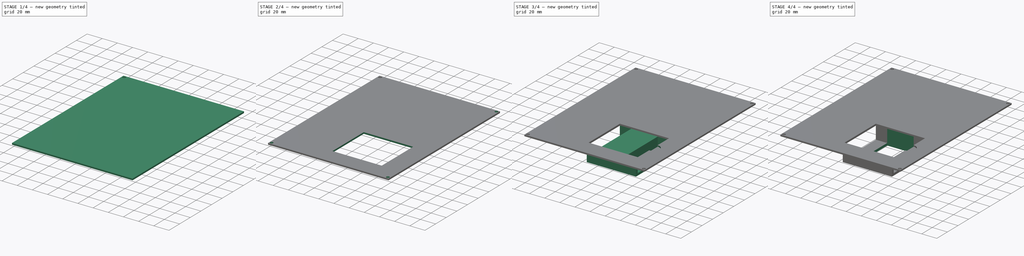
[diagram: build sequence overview — one tinted view per stage of 4, left to right]
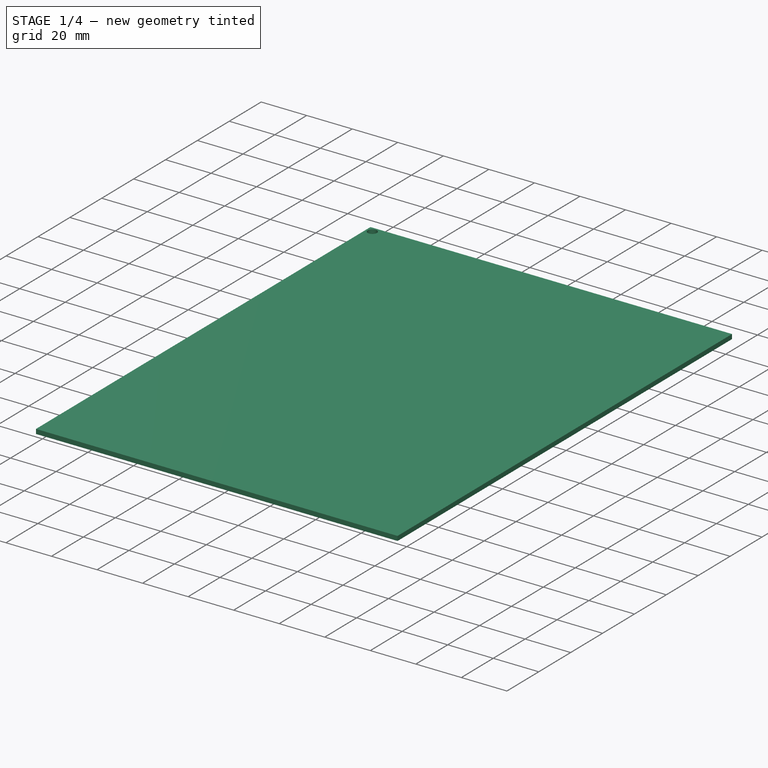
[diagram: stage 1 of 4 — iso view after this stage's code; geometry added in this stage tinted green]
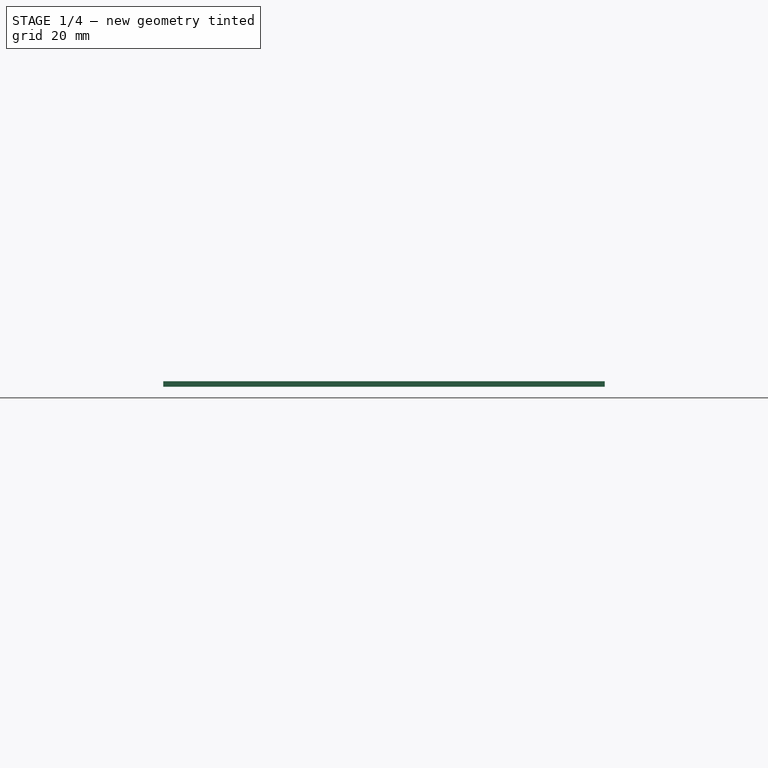
[diagram: stage 1 of 4 — front view after this stage's code; geometry added in this stage tinted green]
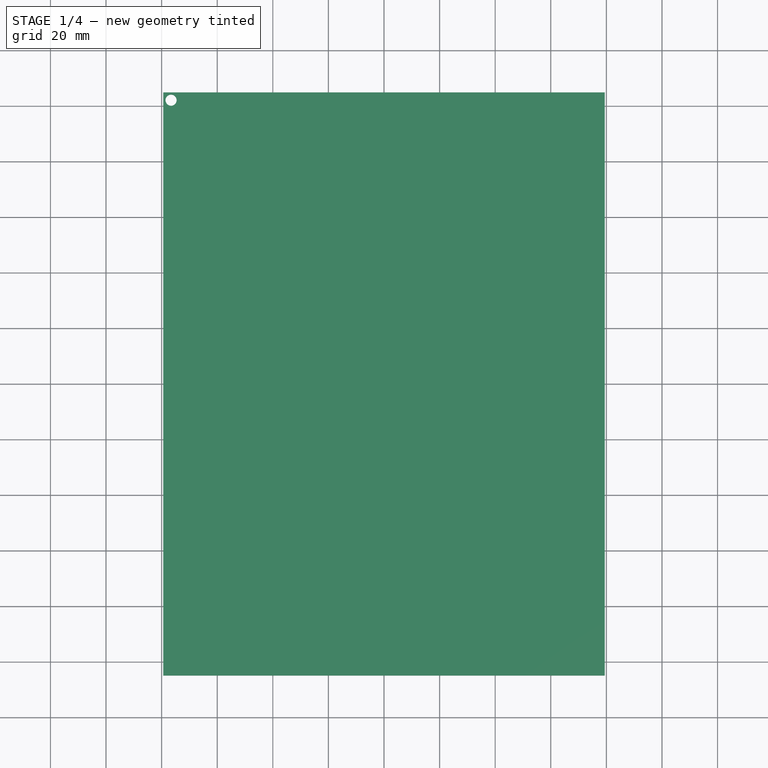
[diagram: stage 1 of 4 — top view after this stage's code; geometry added in this stage tinted green]
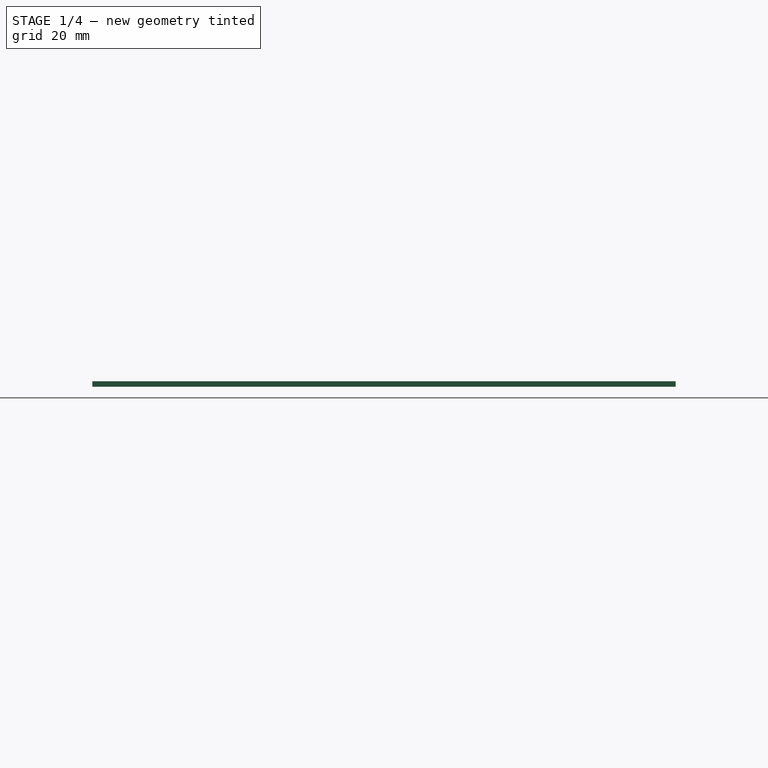
[diagram: stage 1 of 4 — right view after this stage's code; geometry added in this stage tinted green]
FCSTD DOCUMENT  (FreeCAD 0.20R29603 (Git))
Label: lid-frame-2x2
License: All rights reserved
LicenseURL: http://en.wikipedia.org/wiki/All_rights_reserved
objects: Sketcher::SketchObject×8, PartDesign::Pocket×5, PartDesign::Pad×3, PartDesign::Mirrored×2, PartDesign::MultiTransform×1, PartDesign::Body×1
note: 28 computed .brp shape members not serialized (recipe doc carries the construction recipe); baked Part::Feature solids carry a one-line shape summary decoded from their .brp

FEATURE [Sketcher::SketchObject] Sketch  label="Base"
  FullyConstrained = true
  MapMode = 5
  Support = -> [XY_Plane]
  sketch-geometry (4):
    g0: LineSegment StartX=-79.4 StartY=104.9 StartZ=0 EndX=79.4 EndY=104.9 EndZ=0
    g1: LineSegment StartX=79.4 StartY=104.9 StartZ=0 EndX=79.4 EndY=-104.9 EndZ=0
    g2: LineSegment StartX=79.4 StartY=-104.9 StartZ=0 EndX=-79.4 EndY=-104.9 EndZ=0
    g3: LineSegment StartX=-79.4 StartY=-104.9 StartZ=0 EndX=-79.4 EndY=104.9 EndZ=0
  constraints (11):
    c: Coincident(g0,g1)
    c: Coincident(g1,g2)
    c: Coincident(g2,g3)
    c: Coincident(g3,g0)
    c: Horizontal(g0)
    c: Horizontal(g2)
    c: Vertical(g1)
    c: Vertical(g3)
    c: DistanceY(g2,g0) = 209.8
    c: DistanceX(g0,g0) = 158.8
    c: Symmetric(g0,g1,g-1)
FEATURE [PartDesign::Pad] Pad
  Direction = (0,0,1)
  Length = 2
  Length2 = 10
  Profile = -> Sketch
  ReferenceAxis = -> Sketch [N_Axis]
  Type = 0
FEATURE [Sketcher::SketchObject] Sketch001  label="ScrewHole"
  ExternalGeometry = -> [Pad]
  FullyConstrained = true
  MapMode = 5
  Placement = pos=(0,0,2) rot=(0,0,1;0rad)
  Support = -> [Pad]
  sketch-geometry (1):
    g0: Circle CenterX=-76.6 CenterY=102.1 CenterZ=0 NormalX=0 NormalY=0 NormalZ=1 AngleXU=0 Radius=2
  constraints (3):
    c: Diameter(g0) = 4
    c: Distance(g0,g-3) = 2.8
    c: Distance(g0,g-4) = 2.8
FEATURE [PartDesign::Pocket] Pocket
  BaseFeature = -> Pad
  Direction = (0,0,-1)
  Length = 5
  Length2 = 5
  Profile = -> Sketch001
  ReferenceAxis = -> Sketch001 [N_Axis]
  Type = 1
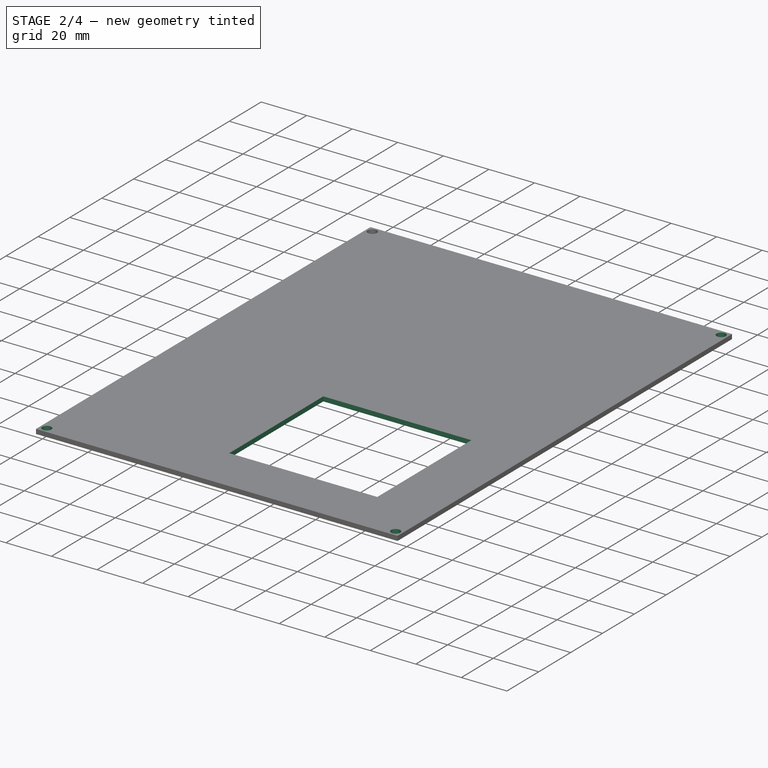
[diagram: stage 2 of 4 — iso view after this stage's code; geometry added in this stage tinted green]
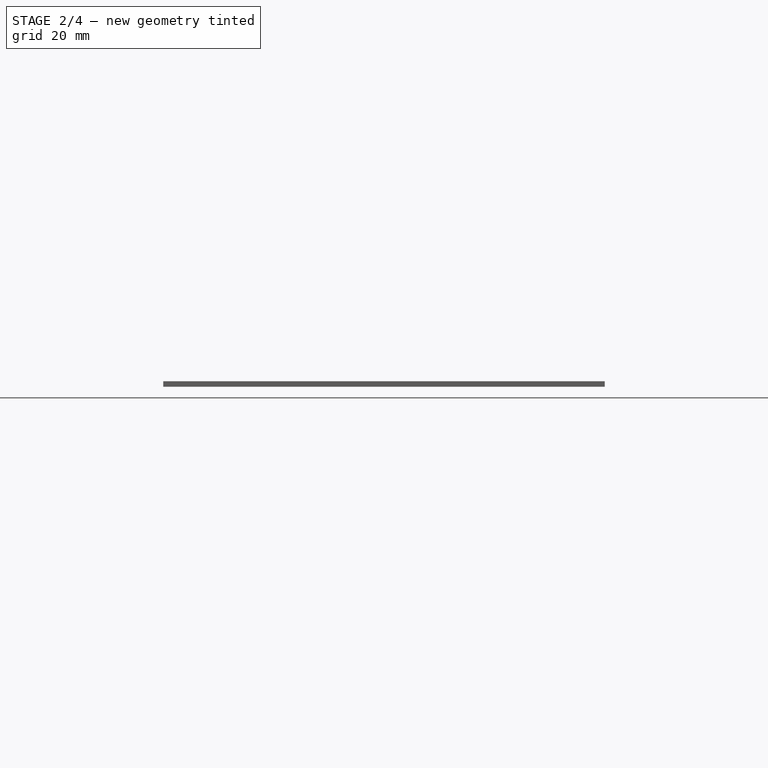
[diagram: stage 2 of 4 — front view after this stage's code; geometry added in this stage tinted green]
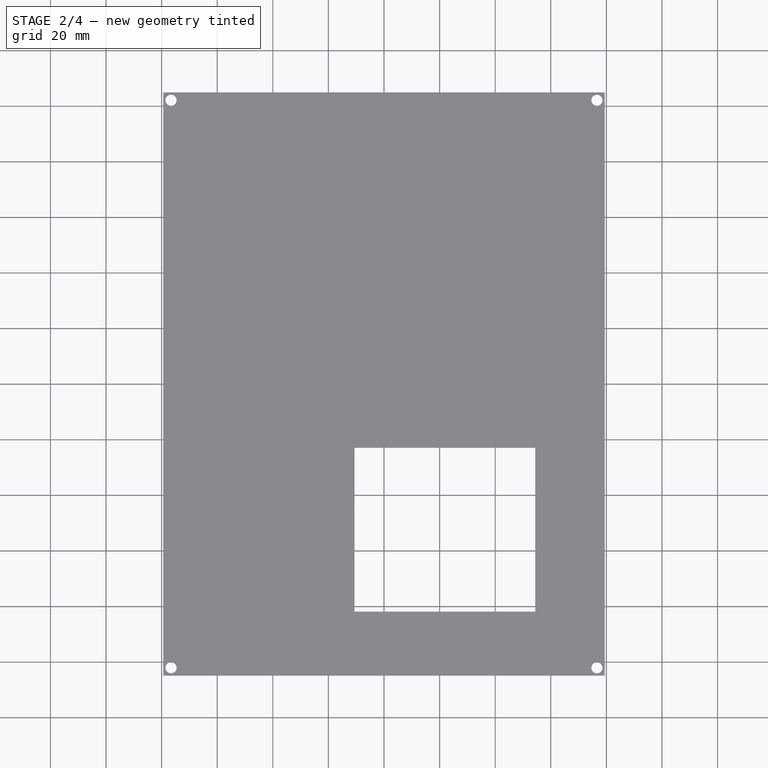
[diagram: stage 2 of 4 — top view after this stage's code; geometry added in this stage tinted green]
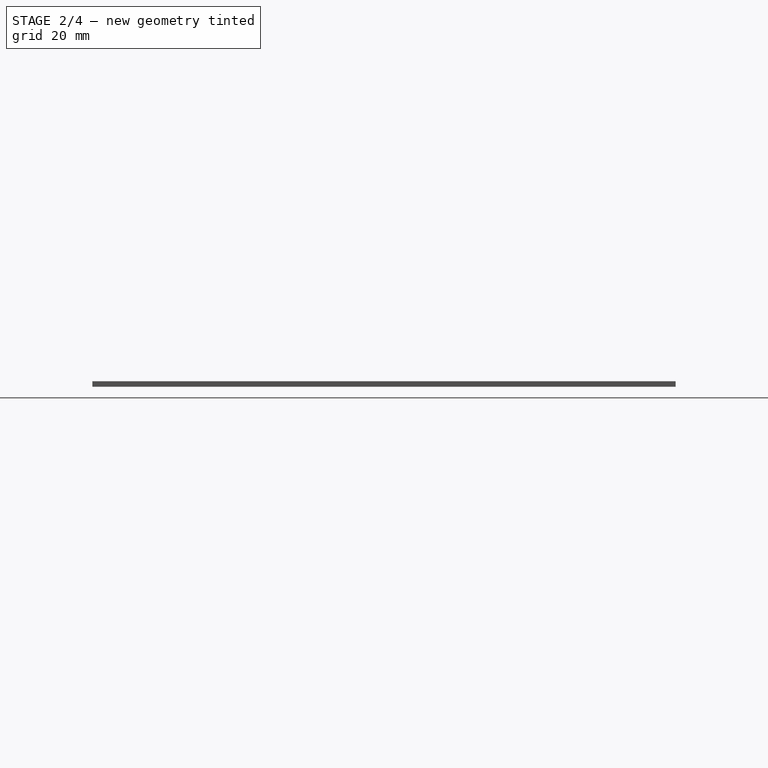
[diagram: stage 2 of 4 — right view after this stage's code; geometry added in this stage tinted green]
FEATURE [PartDesign::Mirrored] Mirrored  label="ScrewHoleMirrorV"
  MirrorPlane = -> Sketch001 [V_Axis]
FEATURE [PartDesign::Mirrored] Mirrored001  label="ScrewHoleMirrorH"
  MirrorPlane = -> Sketch001 [H_Axis]
FEATURE [PartDesign::MultiTransform] MultiTransform
  BaseFeature = -> Pocket
  Originals = -> [Pocket]
  Transformations = -> [Mirrored,Mirrored001]
FEATURE [Sketcher::SketchObject] Sketch002
  ExternalGeometry = -> [MultiTransform]
  FullyConstrained = true
  MapMode = 5
  Placement = pos=(0,0,2) rot=(0,0,1;0rad)
  Support = -> [MultiTransform]
  sketch-geometry (4):
    g0: LineSegment StartX=-10.6 StartY=-22.9 StartZ=0 EndX=54.4 EndY=-22.9 EndZ=0
    g1: LineSegment StartX=54.4 StartY=-22.9 StartZ=0 EndX=54.4 EndY=-81.9 EndZ=0
    g2: LineSegment StartX=54.4 StartY=-81.9 StartZ=0 EndX=-10.6 EndY=-81.9 EndZ=0
    g3: LineSegment StartX=-10.6 StartY=-81.9 StartZ=0 EndX=-10.6 EndY=-22.9 EndZ=0
  constraints (12):
    c: Coincident(g0,g1)
    c: Coincident(g1,g2)
    c: Coincident(g2,g3)
    c: Coincident(g3,g0)
    c: Horizontal(g0)
    c: Horizontal(g2)
    c: Vertical(g1)
    c: Vertical(g3)
    c: DistanceY(g2,g0) = 59
    c: DistanceX(g0,g0) = 65
    c: DistanceX(g1,g-3) = 25
    c: DistanceY(g-3,g0) = 82
FEATURE [PartDesign::Pocket] Pocket001
  BaseFeature = -> MultiTransform
  Direction = (0,0,-1)
  Length = 5
  Length2 = 5
  Profile = -> Sketch002
  ReferenceAxis = -> Sketch002 [N_Axis]
  Type = 1
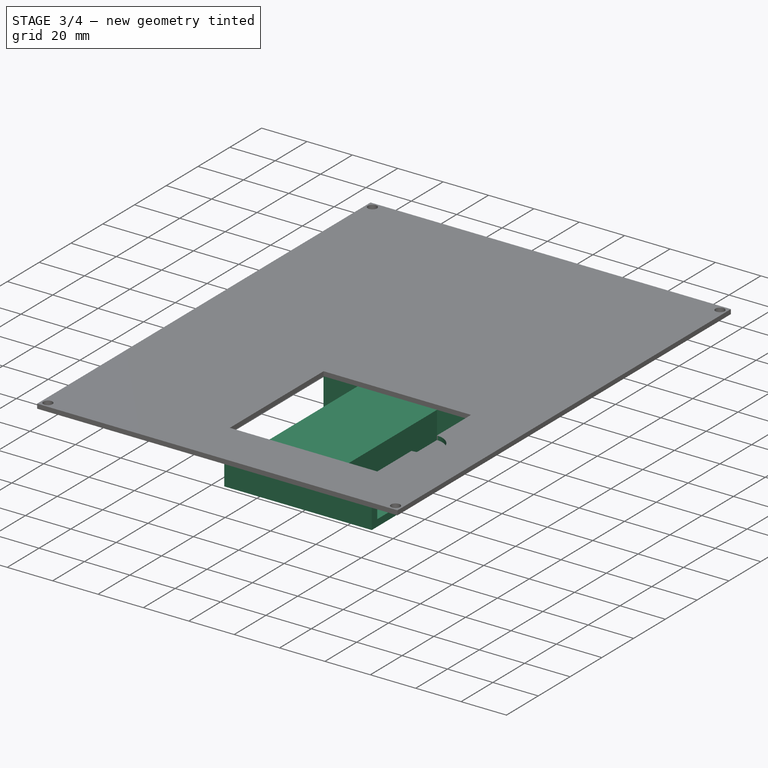
[diagram: stage 3 of 4 — iso view after this stage's code; geometry added in this stage tinted green]
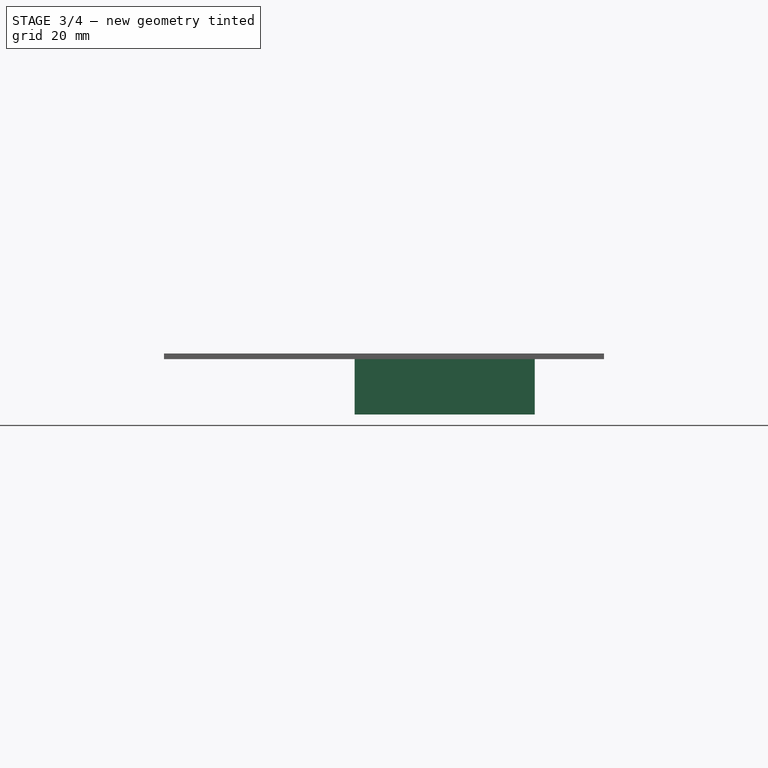
[diagram: stage 3 of 4 — front view after this stage's code; geometry added in this stage tinted green]
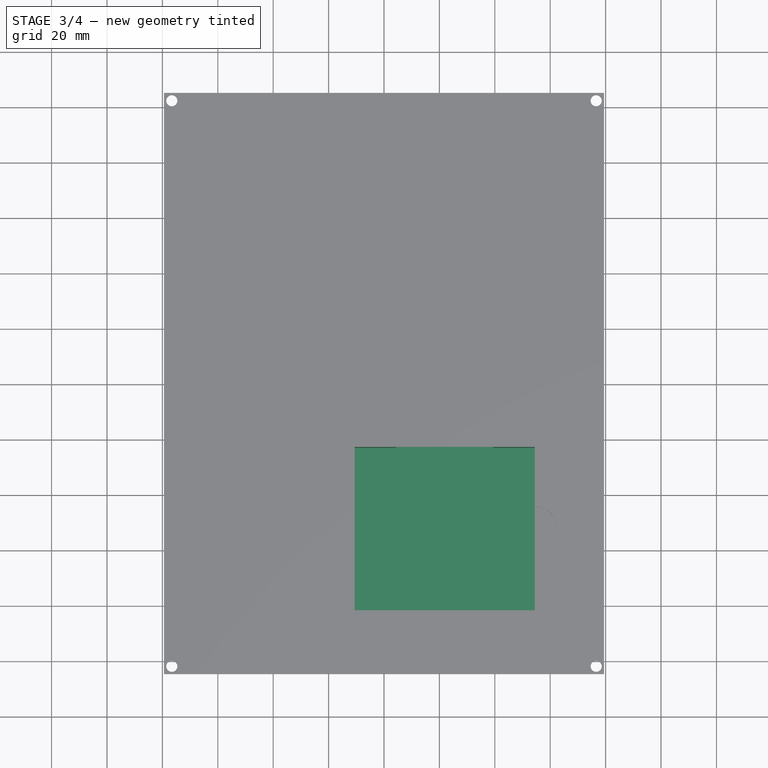
[diagram: stage 3 of 4 — top view after this stage's code; geometry added in this stage tinted green]
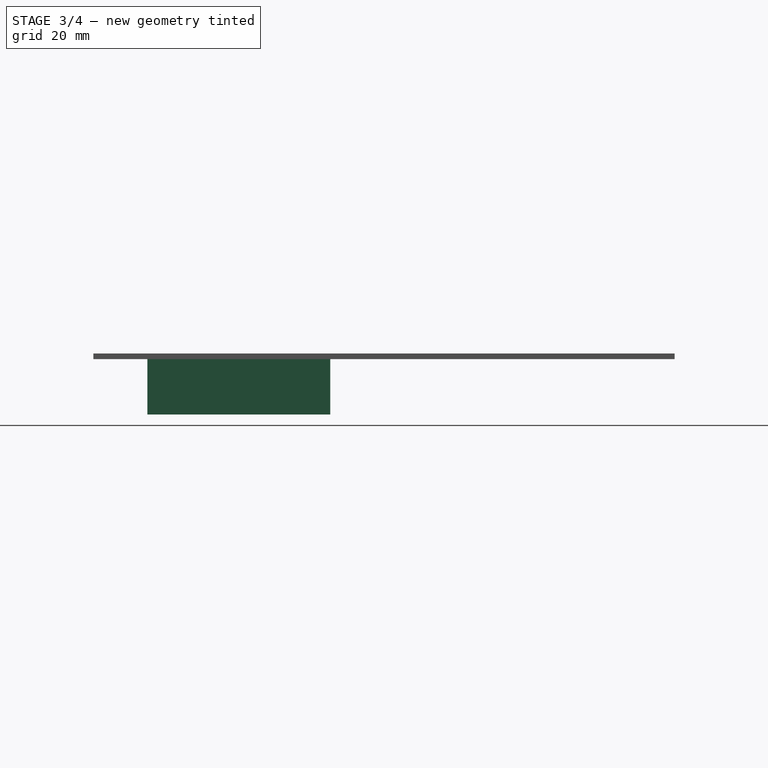
[diagram: stage 3 of 4 — right view after this stage's code; geometry added in this stage tinted green]
FEATURE [Sketcher::SketchObject] Sketch003
  ExternalGeometry = -> [Pocket001]
  FullyConstrained = true
  MapMode = 5
  Placement = pos=(0,0,0) rot=(1,0,0;3.14159rad)
  Support = -> [Pocket001]
  sketch-geometry (4):
    g0: LineSegment StartX=-10.6 StartY=85.4 StartZ=0 EndX=54.4 EndY=85.4 EndZ=0
    g1: LineSegment StartX=54.4 StartY=85.4 StartZ=0 EndX=54.4 EndY=19.4 EndZ=0
    g2: LineSegment StartX=54.4 StartY=19.4 StartZ=0 EndX=-10.6 EndY=19.4 EndZ=0
    g3: LineSegment StartX=-10.6 StartY=19.4 StartZ=0 EndX=-10.6 EndY=85.4 EndZ=0
  constraints (12):
    c: Coincident(g0,g1)
    c: Coincident(g1,g2)
    c: Coincident(g2,g3)
    c: Coincident(g3,g0)
    c: Horizontal(g0)
    c: Horizontal(g2)
    c: Vertical(g1)
    c: Vertical(g3)
    c: DistanceY(g-5,g0) = 3.5
    c: Vertical(g0,g-4)
    c: Vertical(g0,g-5)
    c: DistanceY(g2,g-6) = 3.5
FEATURE [PartDesign::Pad] Pad001
  BaseFeature = -> Pocket001
  Direction = (0,0,-1)
  Length = 20
  Length2 = 10
  Profile = -> Sketch003
  ReferenceAxis = -> Sketch003 [N_Axis]
  Type = 0
FEATURE [Sketcher::SketchObject] Sketch004
  ExternalGeometry = -> [Pad001]
  FullyConstrained = true
  MapMode = 5
  Placement = pos=(0,0,2) rot=(0,0,1;0rad)
  Support = -> [Pad001]
  sketch-geometry (2):
    g0: ArcOfCircle CenterX=54.4 CenterY=-52.4 CenterZ=0 NormalX=0 NormalY=0 NormalZ=1 AngleXU=0 Radius=8 StartAngle=4.71239 EndAngle=7.85398
    g1: LineSegment StartX=54.4 StartY=-44.4 StartZ=0 EndX=54.4 EndY=-60.4 EndZ=0
  constraints (6):
    c: Radius(g0) = 8
    c: Vertical(g0,g0)
    c: Coincident(g1,g0)
    c: Coincident(g1,g0)
    c: PointOnObject(g0,g1)
    c: Symmetric(g-3,g-3,g0)
FEATURE [PartDesign::Pocket] Pocket002
  BaseFeature = -> Pad001
  Direction = (0,0,-1)
  Length = 1.8
  Length2 = 5
  Profile = -> Sketch004
  ReferenceAxis = -> Sketch004 [N_Axis]
  Type = 0
FEATURE [Sketcher::SketchObject] Sketch005
  ExternalGeometry = -> [Pocket002]
  FullyConstrained = true
  MapMode = 5
  Support = -> [Pocket002]
  sketch-geometry (8):
    g0: LineSegment StartX=-10.6 StartY=-22.9 StartZ=0 EndX=4.4 EndY=-22.9 EndZ=0
    g1: LineSegment StartX=4.4 StartY=-22.9 StartZ=0 EndX=4.4 EndY=-81.9 EndZ=0
    g2: LineSegment StartX=4.4 StartY=-81.9 StartZ=0 EndX=-10.6 EndY=-81.9 EndZ=0
    g3: LineSegment StartX=-10.6 StartY=-81.9 StartZ=0 EndX=-10.6 EndY=-22.9 EndZ=0
    g4: LineSegment StartX=39.4 StartY=-22.9 StartZ=0 EndX=54.4 EndY=-22.9 EndZ=0
    g5: LineSegment StartX=54.4 StartY=-22.9 StartZ=0 EndX=54.4 EndY=-81.9 EndZ=0
    g6: LineSegment StartX=54.4 StartY=-81.9 StartZ=0 EndX=39.4 EndY=-81.9 EndZ=0
    g7: LineSegment StartX=39.4 StartY=-81.9 StartZ=0 EndX=39.4 EndY=-22.9 EndZ=0
  constraints (20):
    c: Coincident(g0,g1)
    c: Coincident(g1,g2)
    c: Coincident(g2,g3)
    c: Coincident(g3,g0)
    c: Horizontal(g0)
    c: Horizontal(g2)
    c: Vertical(g1)
    c: Coincident(g-4,g0)
    c: Coincident(g-6,g2)
    c: DistanceX(g2,g1) = 15
    c: Coincident(g4,g5)
    c: Coincident(g5,g6)
    c: Coincident(g6,g7)
    c: Coincident(g7,g4)
    c: Horizontal(g4)
    c: Horizontal(g6)
    c: Vertical(g7)
    c: Coincident(g4,g-5)
    c: Coincident(g5,g-6)
    c: DistanceX(g4,g4) = 15
FEATURE [PartDesign::Pocket] Pocket003
  BaseFeature = -> Pocket002
  Direction = (0,0,-1)
  Length = 17
  Length2 = 5
  Profile = -> Sketch005
  ReferenceAxis = -> Sketch005 [N_Axis]
  Type = 0
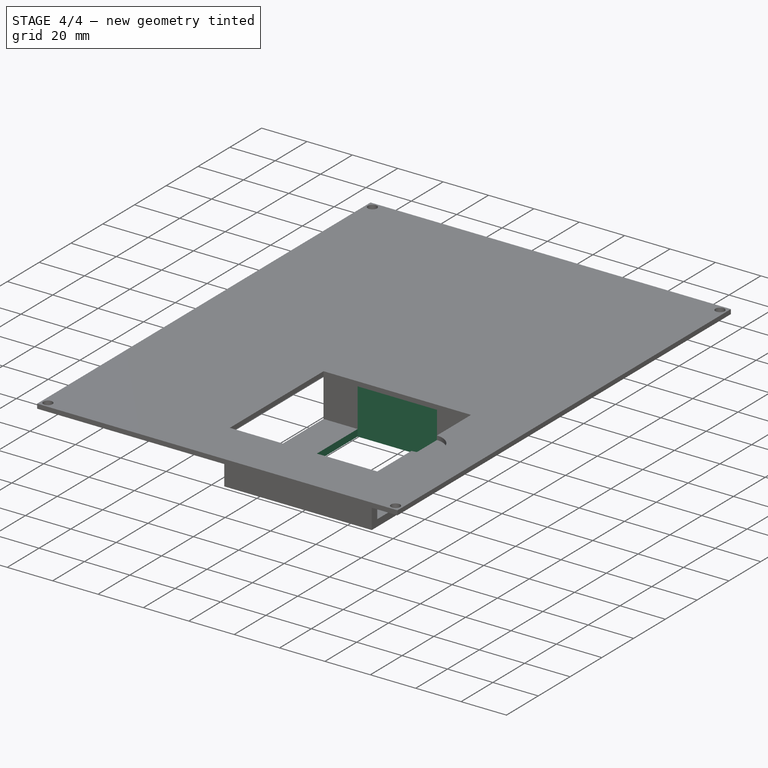
[diagram: stage 4 of 4 — iso view after this stage's code; geometry added in this stage tinted green]
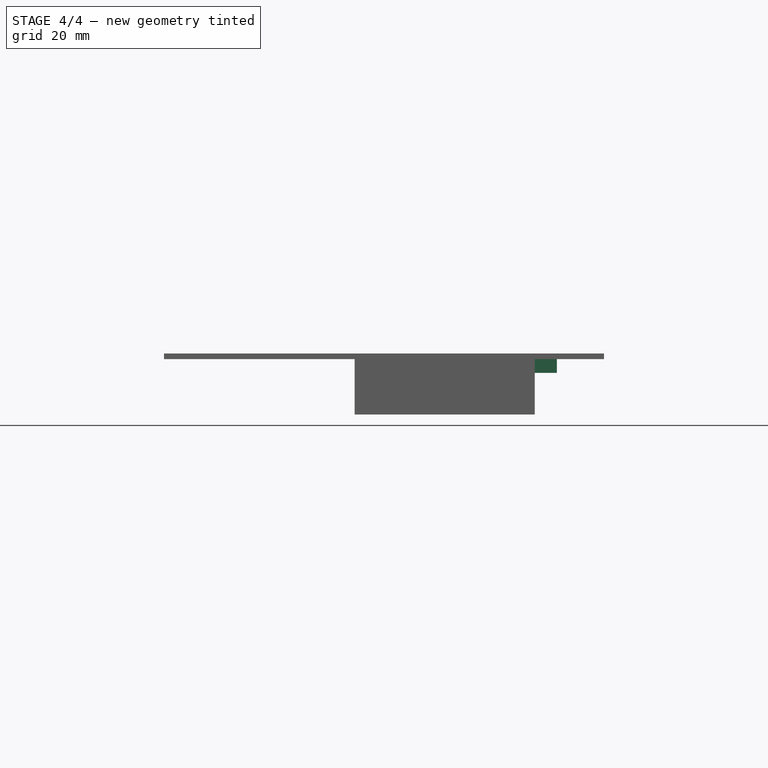
[diagram: stage 4 of 4 — front view after this stage's code; geometry added in this stage tinted green]
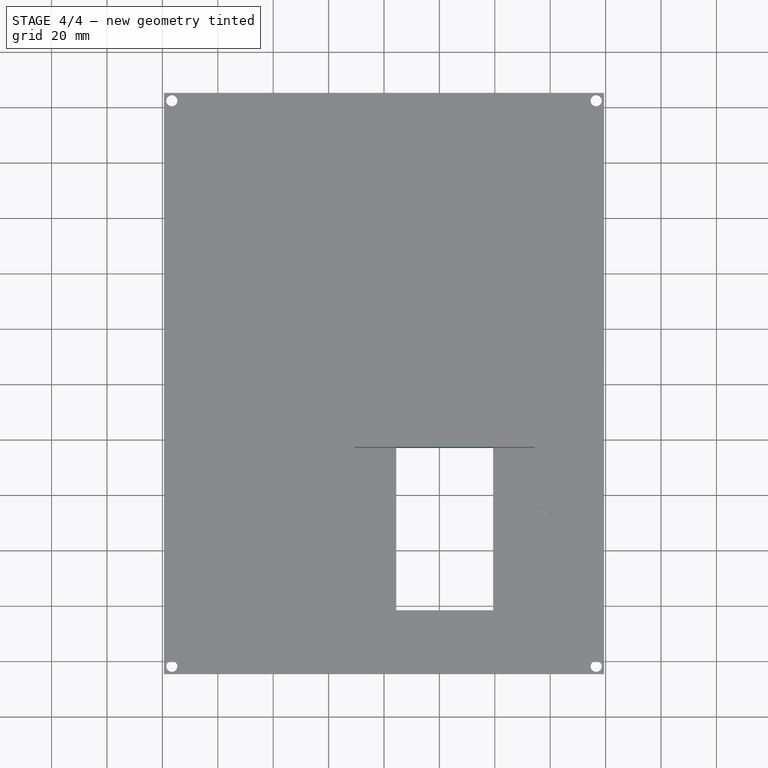
[diagram: stage 4 of 4 — top view after this stage's code; geometry added in this stage tinted green]
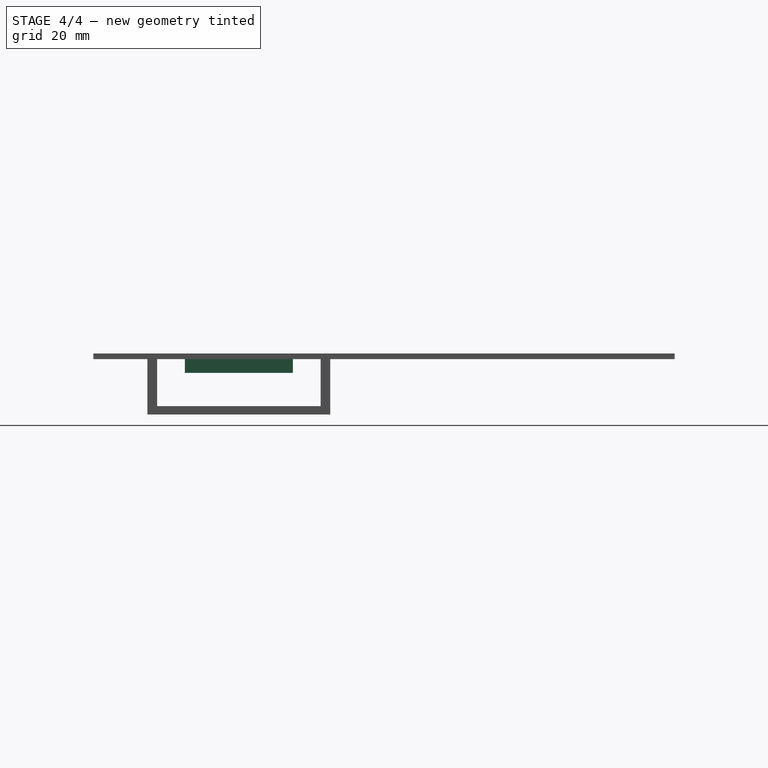
[diagram: stage 4 of 4 — right view after this stage's code; geometry added in this stage tinted green]
FEATURE [Sketcher::SketchObject] Sketch006
  ExternalGeometry = -> [Pocket003]
  FullyConstrained = true
  MapMode = 5
  Support = -> [Pocket003]
  sketch-geometry (4):
    g0: LineSegment StartX=4.4 StartY=-22.9 StartZ=0 EndX=39.4 EndY=-22.9 EndZ=0
    g1: LineSegment StartX=39.4 StartY=-22.9 StartZ=0 EndX=39.4 EndY=-81.9 EndZ=0
    g2: LineSegment StartX=39.4 StartY=-81.9 StartZ=0 EndX=4.4 EndY=-81.9 EndZ=0
    g3: LineSegment StartX=4.4 StartY=-81.9 StartZ=0 EndX=4.4 EndY=-22.9 EndZ=0
  constraints (8):
    c: Coincident(g0,g1)
    c: Coincident(g1,g2)
    c: Coincident(g2,g3)
    c: Coincident(g3,g0)
    c: Coincident(g0,g-3)
    c: Coincident(g0,g-4)
    c: Coincident(g1,g-4)
    c: Coincident(g2,g-3)
FEATURE [PartDesign::Pocket] Pocket004
  BaseFeature = -> Pocket003
  Direction = (0,0,-1)
  Length = 5
  Length2 = 5
  Profile = -> Sketch006
  ReferenceAxis = -> Sketch006 [N_Axis]
  Type = 1
FEATURE [Sketcher::SketchObject] Sketch007
  ExternalGeometry = -> [Pocket004]
  FullyConstrained = true
  MapMode = 5
  Placement = pos=(0,0,0) rot=(1,0,0;3.14159rad)
  Support = -> [Pocket004]
  sketch-geometry (4):
    g0: LineSegment StartX=54.4 StartY=71.9 StartZ=0 EndX=62.4 EndY=71.9 EndZ=0
    g1: LineSegment StartX=62.4 StartY=71.9 StartZ=0 EndX=62.4 EndY=32.9 EndZ=0
    g2: LineSegment StartX=62.4 StartY=32.9 StartZ=0 EndX=54.4 EndY=32.9 EndZ=0
    g3: LineSegment StartX=54.4 StartY=32.9 StartZ=0 EndX=54.4 EndY=71.9 EndZ=0
  constraints (12):
    c: Coincident(g0,g1)
    c: Coincident(g1,g2)
    c: Horizontal(g2)
    c: Vertical(g1)
    c: DistanceX(g2,g1) = 8
    c: Coincident(g3,g0)
    c: Horizontal(g0,g0)
    c: Coincident(g2,g3)
    c: Vertical(g3)
    c: Vertical(g2,g-4)
    c: DistanceY(g0,g-3) = 10
    c: DistanceY(g-4,g2) = 10
FEATURE [PartDesign::Pad] Pad002
  BaseFeature = -> Pocket004
  Direction = (0,0,-1)
  Length = 5
  Length2 = 10
  Profile = -> Sketch007
  ReferenceAxis = -> Sketch007 [N_Axis]
  Type = 0
FEATURE [PartDesign::Body] Body
  Group = -> [Sketch,Pad,Sketch001,Pocket,MultiTransform,Mirrored,Mirrored001,Sketch002,Pocket001,Sketch003,Pad001,Sketch004,Pocket002,Sketch005,Pocket003,Sketch006,Pocket004,Sketch007,Pad002]
  Origin = -> Origin
  Tip = -> Pad002
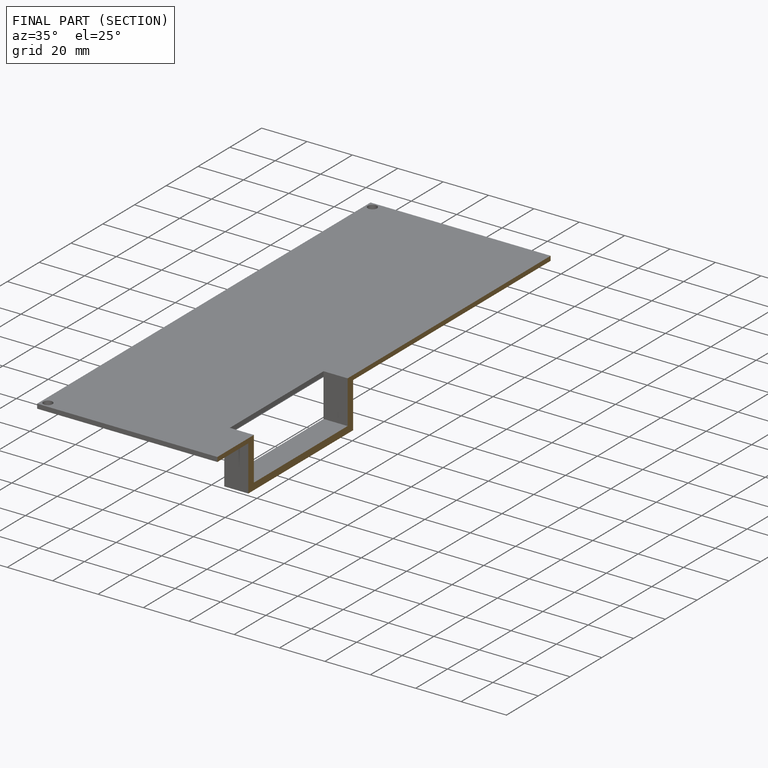
[diagram: finished part — half-section view (interior)]
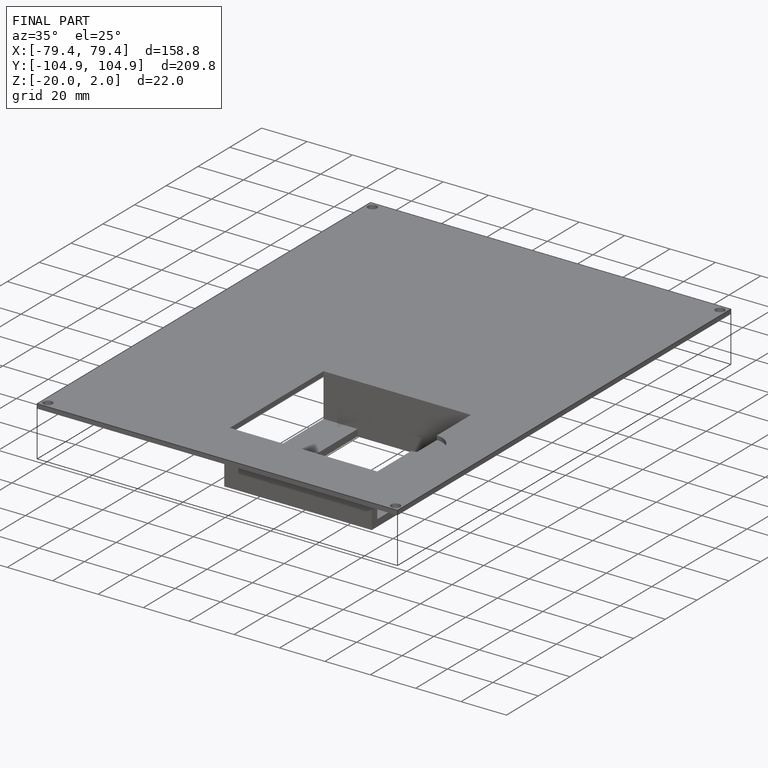
[diagram: finished part — iso view with bounding-box wireframe]
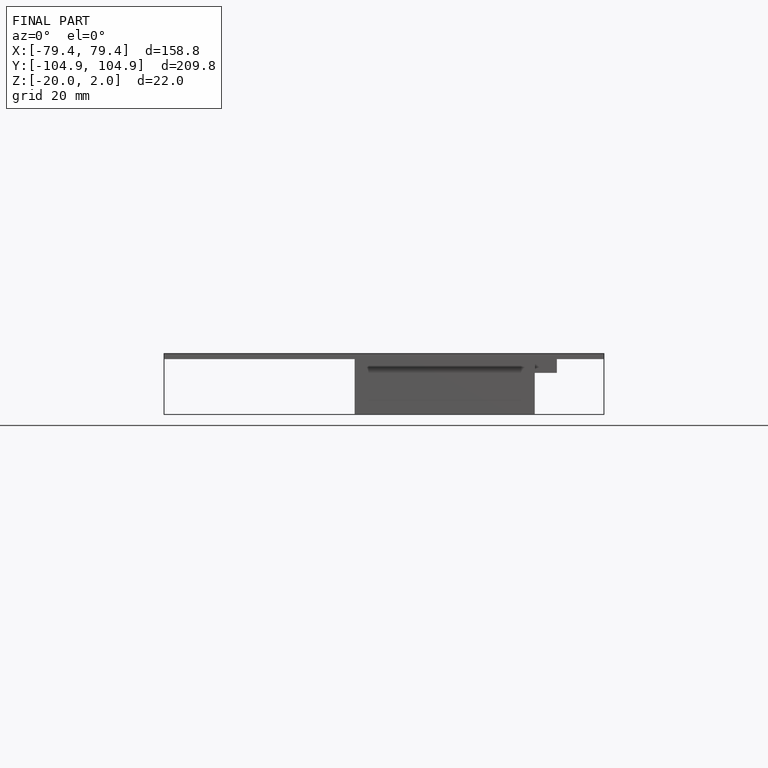
[diagram: finished part — front view with bounding-box wireframe]
